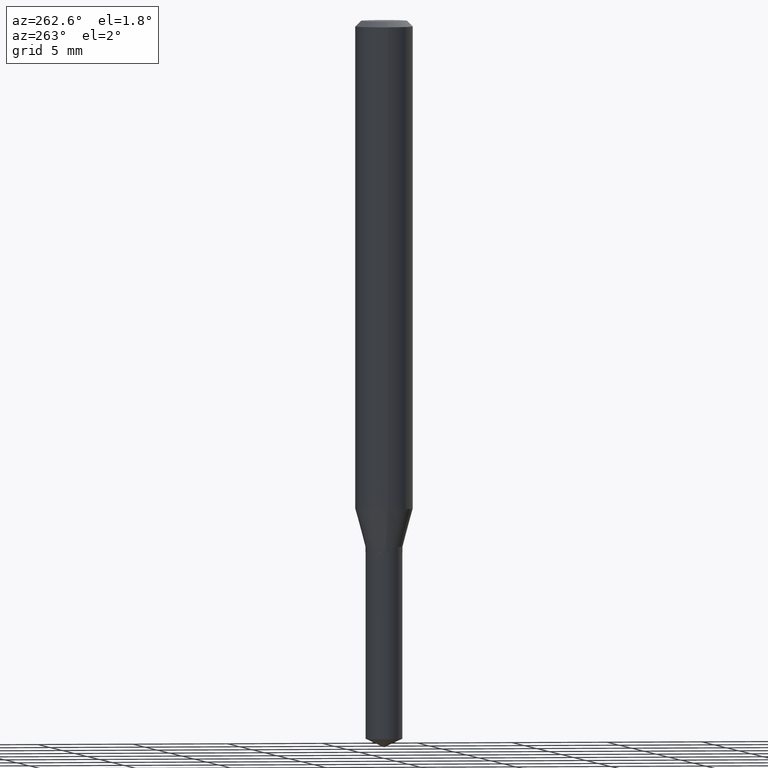
[diagram: clean part render]
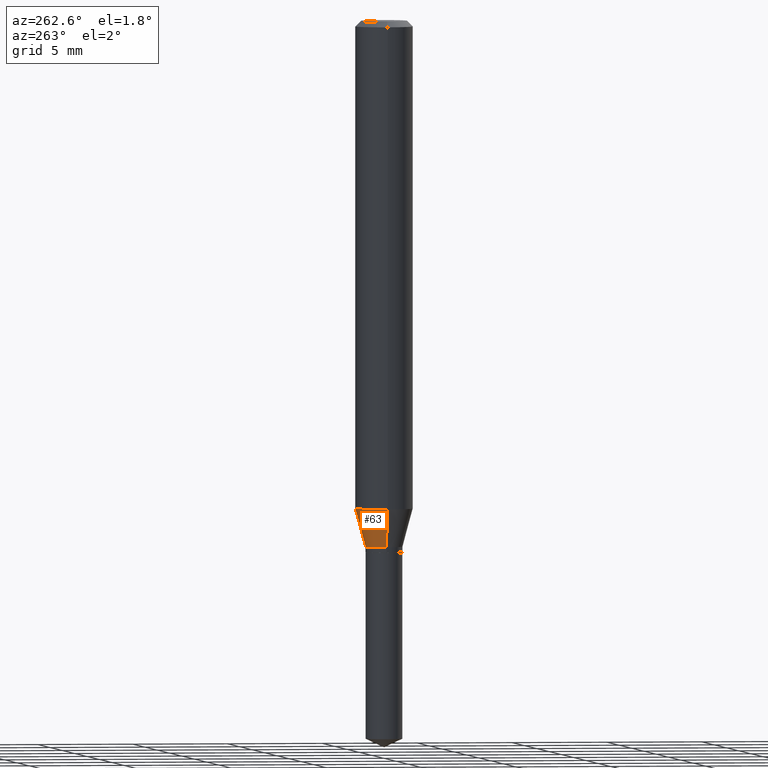
[diagram: same view with one face highlighted and labeled with its STEP entity id]
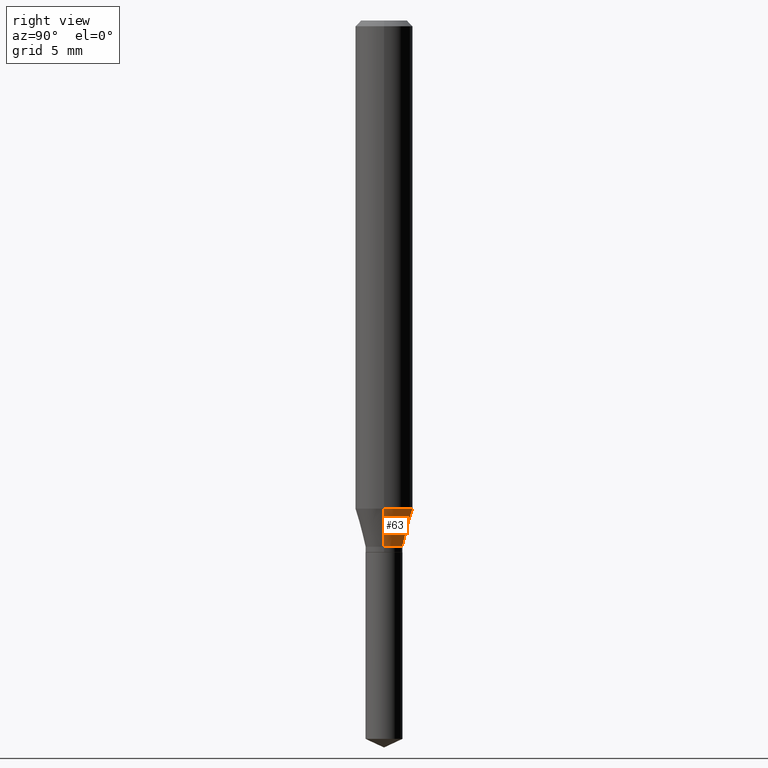
[diagram: same view with one face highlighted and labeled with its STEP entity id]
A machine part, auxiliary view. The second image highlights one B-rep face of the part: STEP entity #63.
A second angle (right view) of the same face is appended — the face is thin or edge-on in the first view.
In plain terms, the highlighted conical surface has half-angle 15 deg.
Its self-contained STEP definition (entity closure, byte-faithful):
#19 = CARTESIAN_POINT ( 'NONE',  ( 0.05905000000000011628, -3.919677764175807032E-15, -1.004540330500674816 ) ) ;
#22 = EDGE_LOOP ( 'NONE', ( #470, #289, #172, #87 ) ) ;
#30 = CARTESIAN_POINT ( 'NONE',  ( -0.05905000000000011628, -3.087758332592092225E-15, -1.004540330500674816 ) ) ;
#31 = FACE_OUTER_BOUND ( 'NONE', #22, .T. ) ;
#44 = LINE ( 'NONE', #203, #483 ) ;
#63 = ADVANCED_FACE ( 'NONE', ( #31 ), #473, .T. ) ;
#81 = CIRCLE ( 'NONE', #292, 0.05905000000000011628 ) ;
#87 = ORIENTED_EDGE ( 'NONE', *, *, #384, .F. ) ;
#92 = VERTEX_POINT ( 'NONE', #30 ) ;
#100 = CARTESIAN_POINT ( 'NONE',  ( 2.648687263979121750E-29, -3.781623438101010914E-15, -1.083099999999999952 ) ) ;
#109 = DIRECTION ( 'NONE',  ( -2.445468806185136597E-29, 3.491481338843145583E-15, 1.000000000000000000 ) ) ;
#115 = DIRECTION ( 'NONE',  ( 1.000000000000000000, -6.982962677686266711E-15, 0.000000000000000000 ) ) ;
#152 = AXIS2_PLACEMENT_3D ( 'NONE', #100, #109, #268 ) ;
#157 = DIRECTION ( 'NONE',  ( 1.000000000000000000, -6.982962677686269077E-15, 0.000000000000000000 ) ) ;
#158 = DIRECTION ( 'NONE',  ( 0.2588190451025212391, 1.565188264969622362E-15, 0.9659258262890679791 ) ) ;
#172 = ORIENTED_EDGE ( 'NONE', *, *, #304, .F. ) ;
#179 = CIRCLE ( 'NONE', #388, 0.03799999999999999906 ) ;
#194 = VERTEX_POINT ( 'NONE', #445 ) ;
#196 = CARTESIAN_POINT ( 'NONE',  ( -0.03799999999999999906, -3.530645771808868176E-15, -1.083099999999999952 ) ) ;
#203 = CARTESIAN_POINT ( 'NONE',  ( 0.03799999999999999906, -4.046976019853088923E-15, -1.083099999999999952 ) ) ;
#231 = LINE ( 'NONE', #461, #437 ) ;
#236 = CARTESIAN_POINT ( 'NONE',  ( 2.648687263979121750E-29, -3.781623438101010914E-15, -1.083099999999999952 ) ) ;
#268 = DIRECTION ( 'NONE',  ( 1.000000000000000000, -6.982962677686269077E-15, 0.000000000000000000 ) ) ;
#271 = DIRECTION ( 'NONE',  ( -2.445468806185136597E-29, 3.491481338843145583E-15, 1.000000000000000000 ) ) ;
#277 = EDGE_CURVE ( 'NONE', #363, #92, #231, .T. ) ;
#289 = ORIENTED_EDGE ( 'NONE', *, *, #277, .T. ) ;
#292 = AXIS2_PLACEMENT_3D ( 'NONE', #390, #271, #115 ) ;
#304 = EDGE_CURVE ( 'NONE', #468, #92, #81, .T. ) ;
#348 = EDGE_CURVE ( 'NONE', #194, #363, #179, .T. ) ;
#363 = VERTEX_POINT ( 'NONE', #196 ) ;
#384 = EDGE_CURVE ( 'NONE', #194, #468, #44, .T. ) ;
#387 = DIRECTION ( 'NONE',  ( -2.445468806185136597E-29, 3.491481338843145583E-15, 1.000000000000000000 ) ) ;
#388 = AXIS2_PLACEMENT_3D ( 'NONE', #236, #387, #157 ) ;
#390 = CARTESIAN_POINT ( 'NONE',  ( 2.456572042794307838E-29, -3.507333818058432112E-15, -1.004540330500674816 ) ) ;
#437 = VECTOR ( 'NONE', #462, 39.37007874015748854 ) ;
#445 = CARTESIAN_POINT ( 'NONE',  ( 0.03799999999999999906, -4.046976019853088923E-15, -1.083099999999999952 ) ) ;
#461 = CARTESIAN_POINT ( 'NONE',  ( -0.03799999999999999906, -3.511617198512172998E-15, -1.083099999999999952 ) ) ;
#462 = DIRECTION ( 'NONE',  ( -0.2588190451025212391, 5.211531920934549464E-15, 0.9659258262890679791 ) ) ;
#468 = VERTEX_POINT ( 'NONE', #19 ) ;
#470 = ORIENTED_EDGE ( 'NONE', *, *, #348, .T. ) ;
#473 = CONICAL_SURFACE ( 'NONE', #152, 0.03799999999999999906, 0.2617993877991499629 ) ;
#483 = VECTOR ( 'NONE', #158, 39.37007874015748854 ) ;